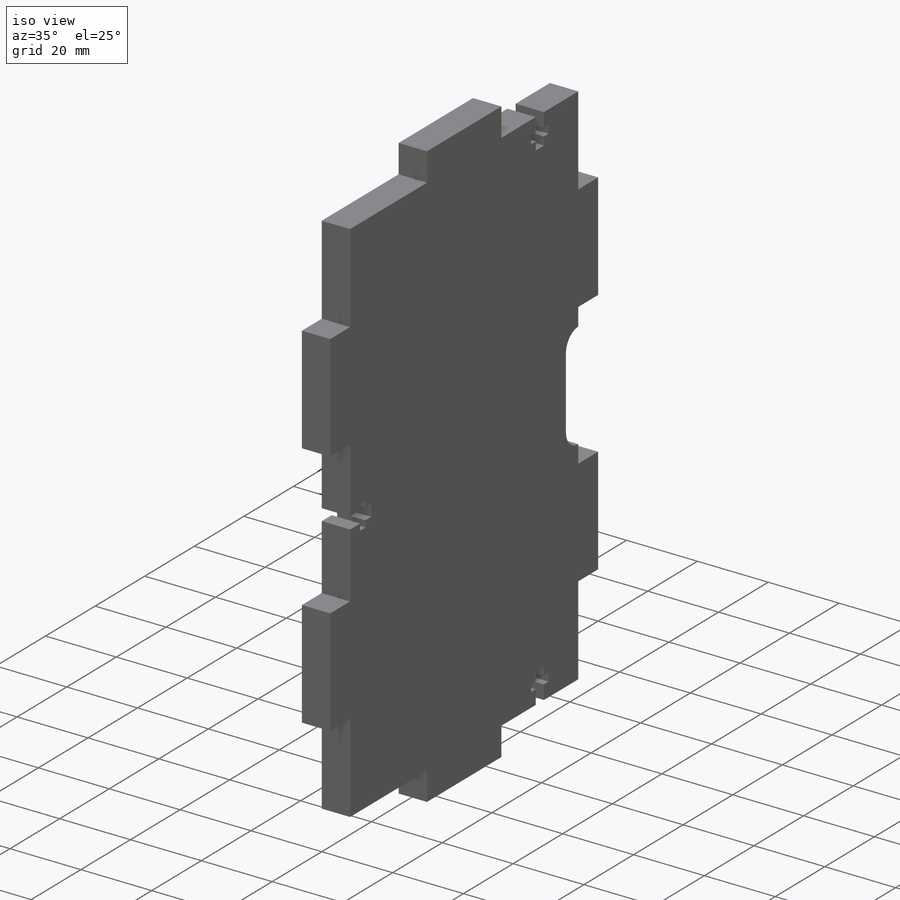
[diagram: iso view]
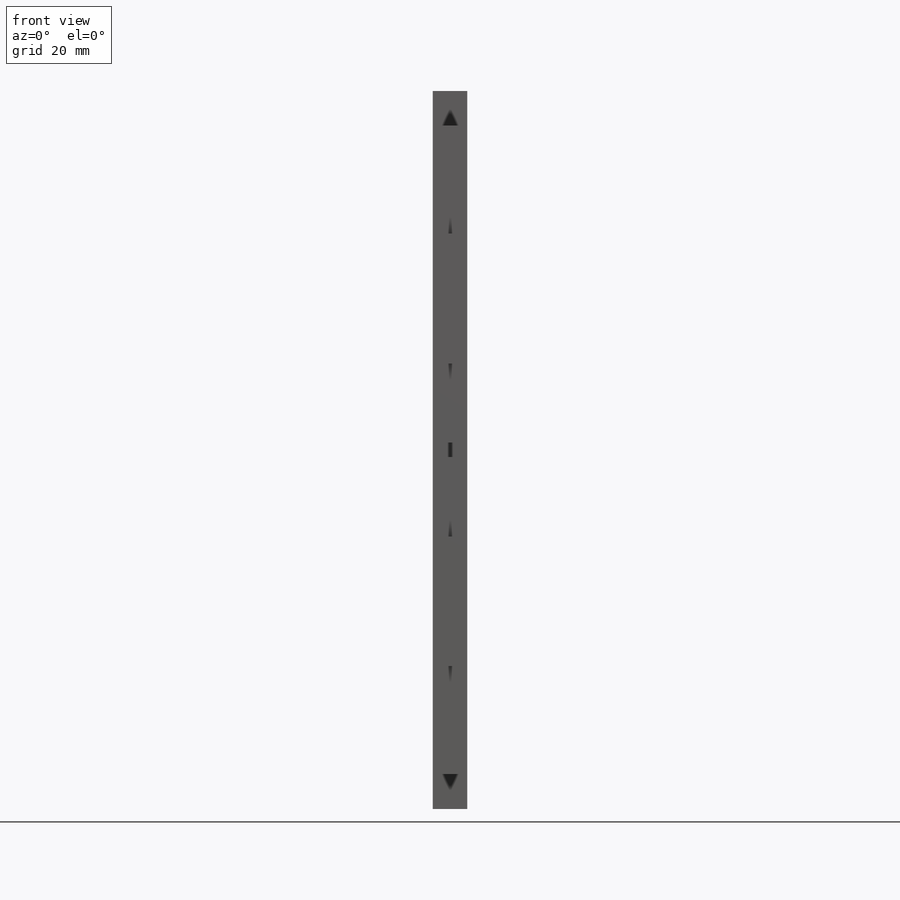
[diagram: front view]
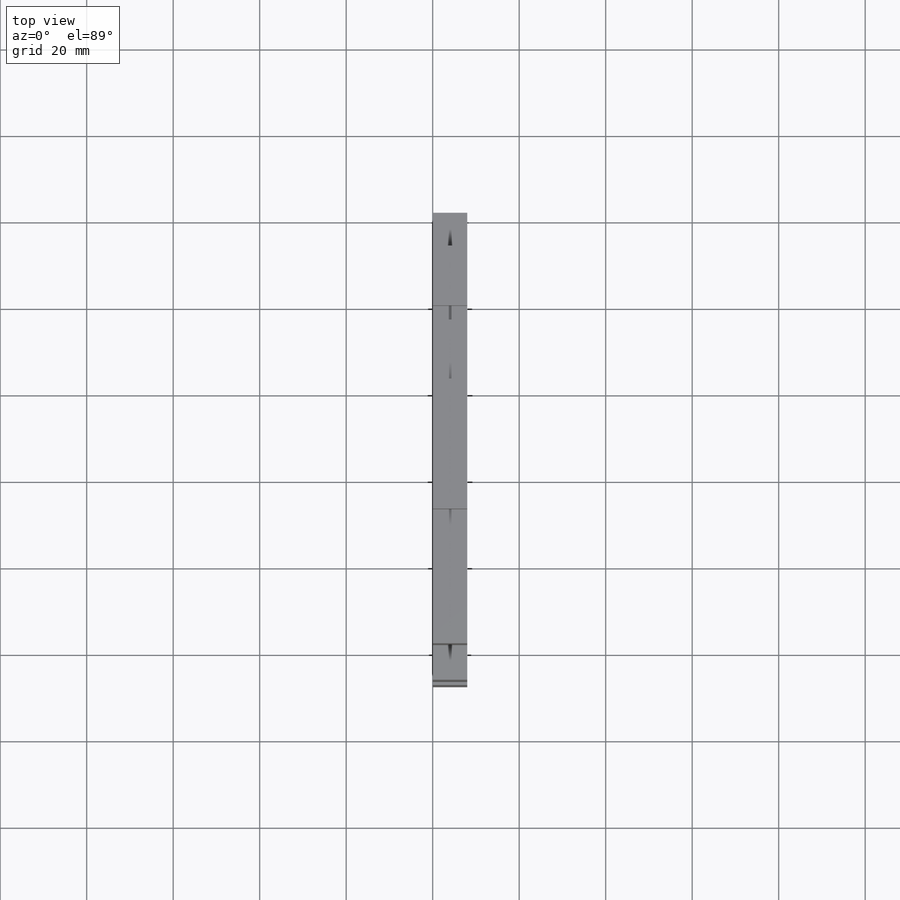
[diagram: top view]
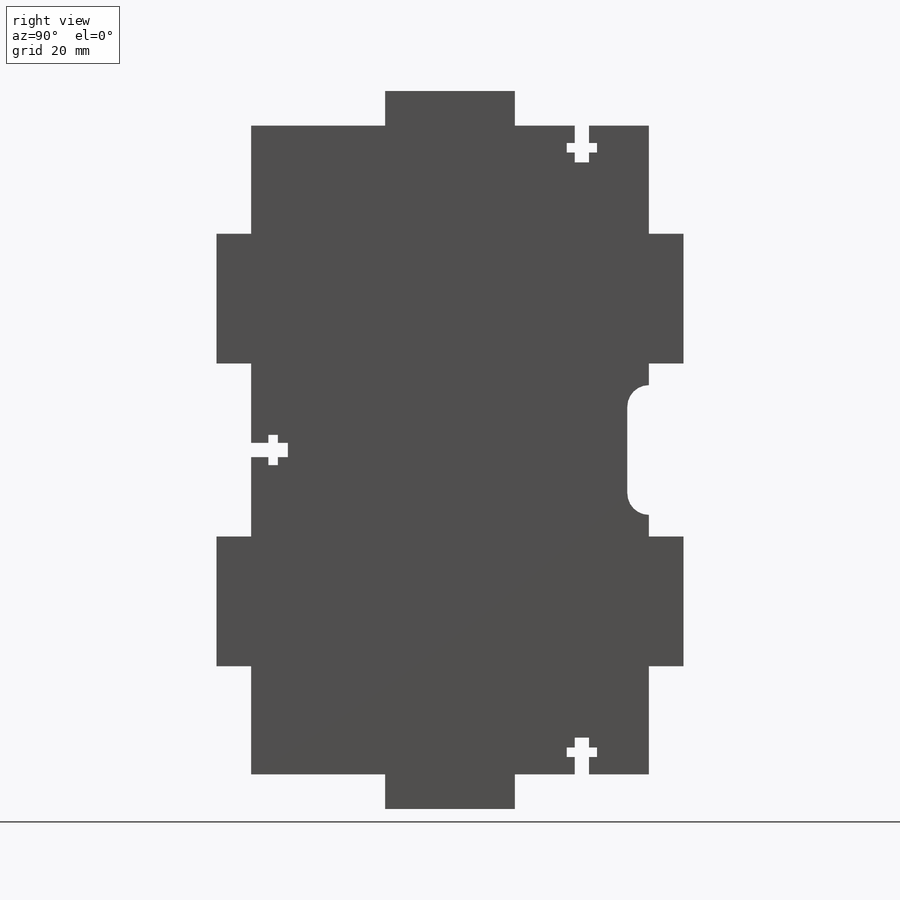
[diagram: right view]
SOLIDWORKS PART (.sldprt)
format: sldprt  version: not decoded by parser v0  size: 245,760 bytes
history: native  units: mm
features: sketch x3, extrude x2, material x1, cut_extrude x1 (+16 scaffold rows collapsed)
feature tree (23):
  scaffold x16  (default folders/planes/origin — collapsed)
  material  "Acrylic (Medium-high impact)"
  sketch  "Sketch1"  dims[D1=92.0mm D2=150.0mm]
  extrude  "Boss-Extrude1"  Depth=8mm
  sketch  "Sketch2"  dims[D1=30.0mm D2=8.0mm D3=30.0mm D4=8.0mm D5=25.0mm]
  extrude  "Boss-Extrude2"  Depth=8mm
  sketch  "Sketch4"  dims[c1.D3=5.0mm c1.D1=15.0mm c1.D2=20.0mm c2.D1=3.3mm c2.D4=7.0mm c2.D5=4.0mm c2.D6=2.2mm c2.D7=2.3mm c2.D8=3.3mm c2.D9=7.0mm c2.D10=4.0mm c2.D11=2.2mm c2.D12=2.0mm c3.D8=3.3mm c3.D9=7.0mm c3.D10=4.0mm c3.D11=2.2mm c3.D12=2.3mm]
  cut_extrude  "Cut-Extrude2"  [1 undecoded]
decode coverage: 5 of 6 modeling features carry decoded parameters
note: 1 parameter value undecoded
note: suppression state not decoded; provenance and decode notes live in map.json
